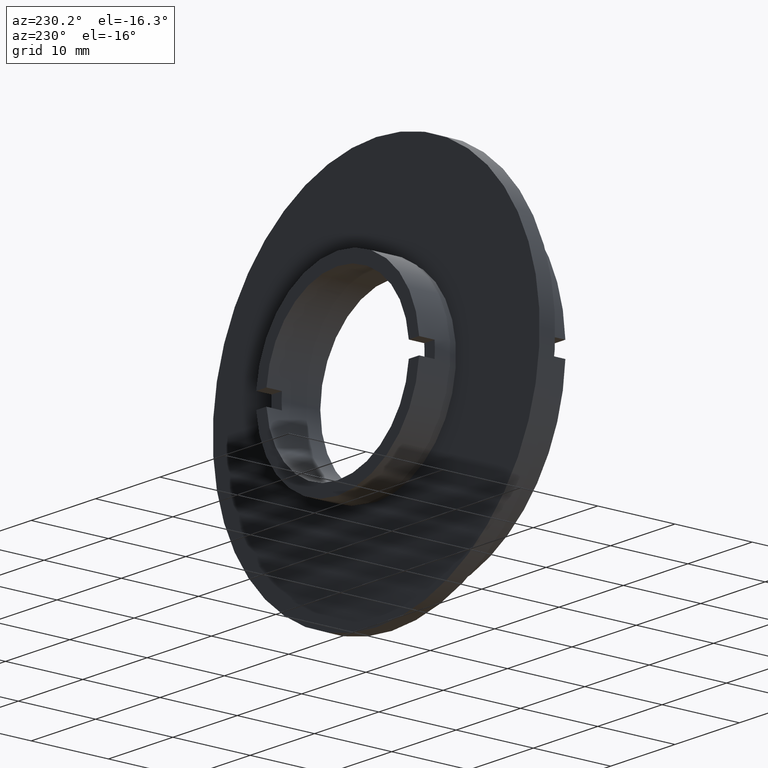
[diagram: clean part render]
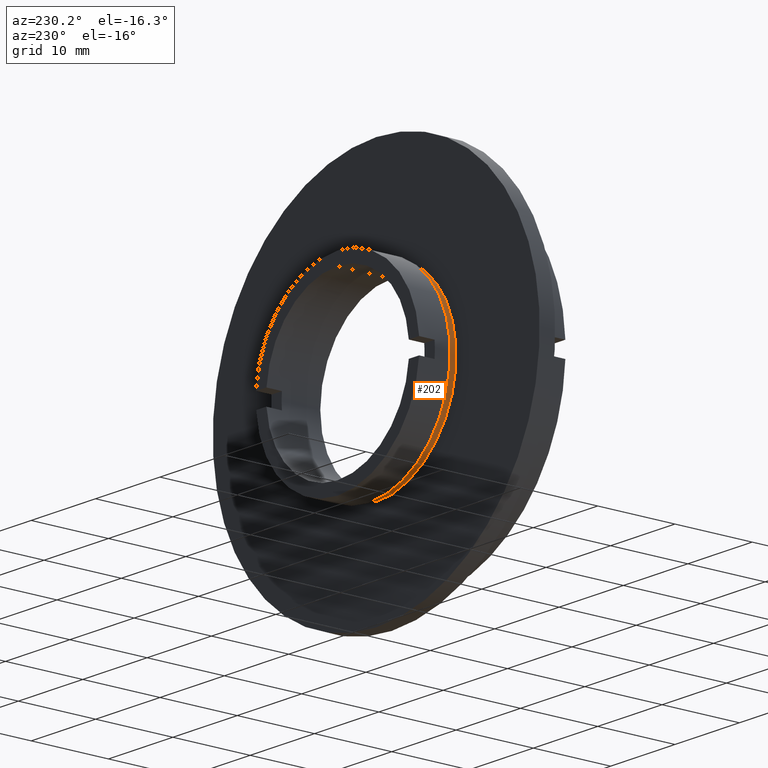
[diagram: same view with one face highlighted and labeled with its STEP entity id]
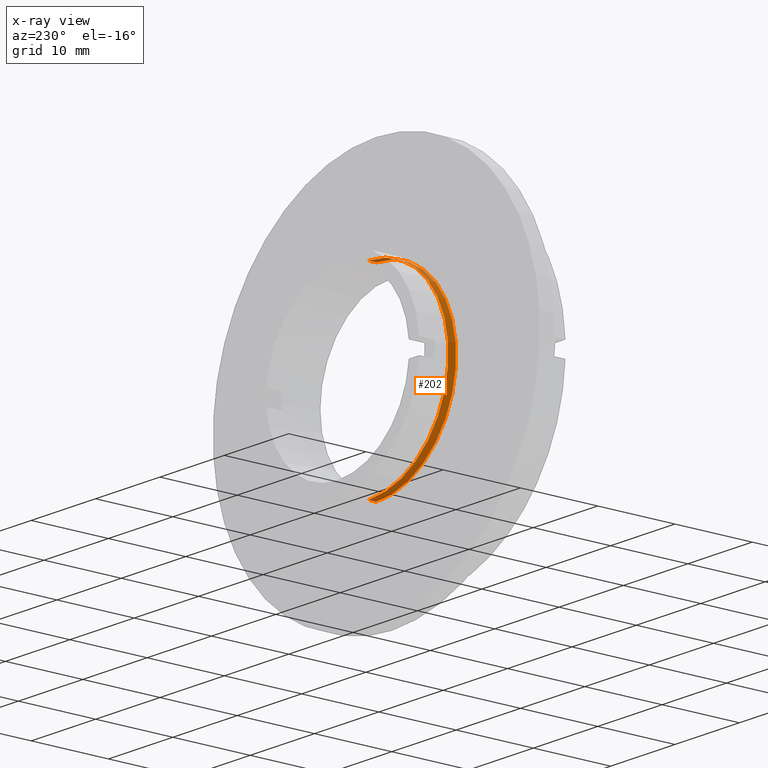
[diagram: x-ray of the same camera — body ghosted, the highlighted face saturated]
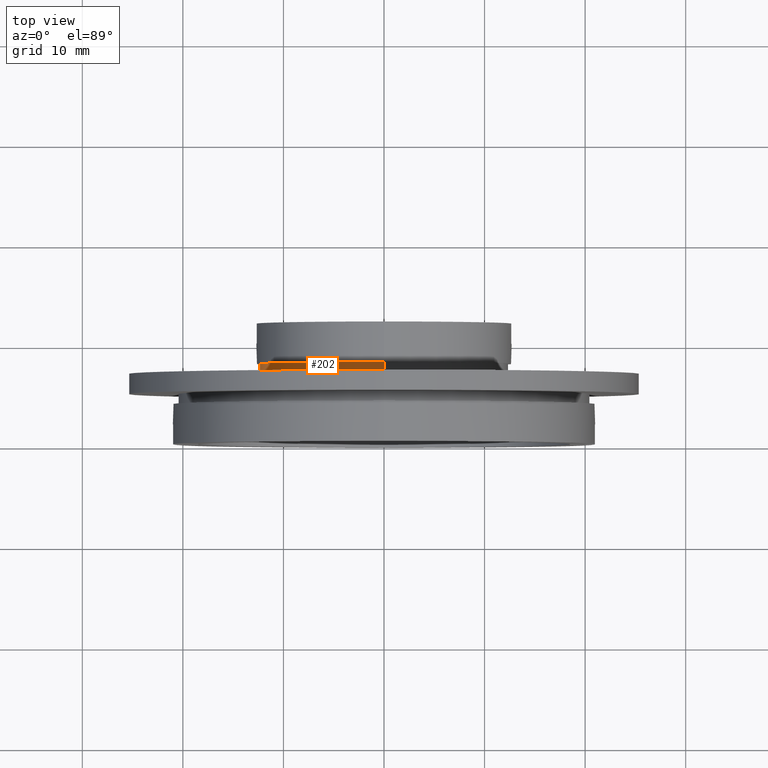
[diagram: same view with one face highlighted and labeled with its STEP entity id]
A machine part, auxiliary view. The second image highlights one B-rep face of the part: STEP entity #202.
The next image is the same camera in x-ray: the body ghosted, the highlighted face saturated — about 1% of this face is hidden behind the body in this view.
A second angle (top view) of the same face is appended — the face is thin or edge-on in the first view.
In plain terms, the highlighted cylindrical surface (partial cylindrical patch) has radius 12.4 mm, axis along (-0, 1, -0).
Its self-contained STEP definition (entity closure, byte-faithful):
#5 = VERTEX_POINT ( 'NONE', #568 ) ;
#33 = CIRCLE ( 'NONE', #1175, 12.39999999999999900 ) ;
#44 = VECTOR ( 'NONE', #1186, 1000.000000000000000 ) ;
#117 = CYLINDRICAL_SURFACE ( 'NONE', #838, 12.39999999999999900 ) ;
#127 = VECTOR ( 'NONE', #590, 1000.000000000000000 ) ;
#176 = EDGE_LOOP ( 'NONE', ( #818, #545, #200, #947 ) ) ;
#199 = EDGE_CURVE ( 'NONE', #5, #651, #1202, .T. ) ;
#200 = ORIENTED_EDGE ( 'NONE', *, *, #829, .T. ) ;
#202 = ADVANCED_FACE ( 'NONE', ( #383 ), #117, .T. ) ;
#246 = CARTESIAN_POINT ( 'NONE',  ( 1.518562030942717800E-015, 22.67749945107591400, -12.39999999999999900 ) ) ;
#269 = EDGE_CURVE ( 'NONE', #5, #908, #33, .T. ) ;
#355 = LINE ( 'NONE', #1254, #127 ) ;
#383 = FACE_OUTER_BOUND ( 'NONE', #176, .T. ) ;
#497 = DIRECTION ( 'NONE',  ( 0.0000000000000000000, 0.0000000000000000000, 1.000000000000000000 ) ) ;
#545 = ORIENTED_EDGE ( 'NONE', *, *, #269, .T. ) ;
#568 = CARTESIAN_POINT ( 'NONE',  ( 1.518562030942717800E-015, 6.999999999999999100, -12.39999999999999900 ) ) ;
#590 = DIRECTION ( 'NONE',  ( -0.0000000000000000000, 1.000000000000000000, -0.0000000000000000000 ) ) ;
#650 = CARTESIAN_POINT ( 'NONE',  ( 0.0000000000000000000, 22.67749945107591400, 0.0000000000000000000 ) ) ;
#651 = VERTEX_POINT ( 'NONE', #1085 ) ;
#685 = CARTESIAN_POINT ( 'NONE',  ( 0.0000000000000000000, 6.999999999999999100, 0.0000000000000000000 ) ) ;
#818 = ORIENTED_EDGE ( 'NONE', *, *, #199, .F. ) ;
#829 = EDGE_CURVE ( 'NONE', #908, #1099, #355, .T. ) ;
#838 = AXIS2_PLACEMENT_3D ( 'NONE', #650, #1153, #1096 ) ;
#867 = CARTESIAN_POINT ( 'NONE',  ( 0.0000000000000000000, 6.999999999999999100, 12.39999999999999900 ) ) ;
#879 = CIRCLE ( 'NONE', #1190, 12.39999999999999900 ) ;
#908 = VERTEX_POINT ( 'NONE', #867 ) ;
#947 = ORIENTED_EDGE ( 'NONE', *, *, #1316, .F. ) ;
#1002 = DIRECTION ( 'NONE',  ( -0.0000000000000000000, 1.000000000000000000, -0.0000000000000000000 ) ) ;
#1085 = CARTESIAN_POINT ( 'NONE',  ( 1.518562030942717800E-015, 8.000000000000000000, -12.39999999999999900 ) ) ;
#1092 = CARTESIAN_POINT ( 'NONE',  ( 0.0000000000000000000, 8.000000000000000000, 0.0000000000000000000 ) ) ;
#1096 = DIRECTION ( 'NONE',  ( 0.0000000000000000000, 0.0000000000000000000, 1.000000000000000000 ) ) ;
#1099 = VERTEX_POINT ( 'NONE', #1107 ) ;
#1107 = CARTESIAN_POINT ( 'NONE',  ( 0.0000000000000000000, 8.000000000000000000, 12.39999999999999900 ) ) ;
#1153 = DIRECTION ( 'NONE',  ( -0.0000000000000000000, 1.000000000000000000, -0.0000000000000000000 ) ) ;
#1175 = AXIS2_PLACEMENT_3D ( 'NONE', #685, #1002, #497 ) ;
#1186 = DIRECTION ( 'NONE',  ( -0.0000000000000000000, 1.000000000000000000, -0.0000000000000000000 ) ) ;
#1190 = AXIS2_PLACEMENT_3D ( 'NONE', #1092, #1272, #1260 ) ;
#1202 = LINE ( 'NONE', #246, #44 ) ;
#1254 = CARTESIAN_POINT ( 'NONE',  ( 0.0000000000000000000, 22.67749945107591400, 12.39999999999999900 ) ) ;
#1260 = DIRECTION ( 'NONE',  ( 0.0000000000000000000, 0.0000000000000000000, 1.000000000000000000 ) ) ;
#1272 = DIRECTION ( 'NONE',  ( -0.0000000000000000000, 1.000000000000000000, -0.0000000000000000000 ) ) ;
#1316 = EDGE_CURVE ( 'NONE', #651, #1099, #879, .T. ) ;